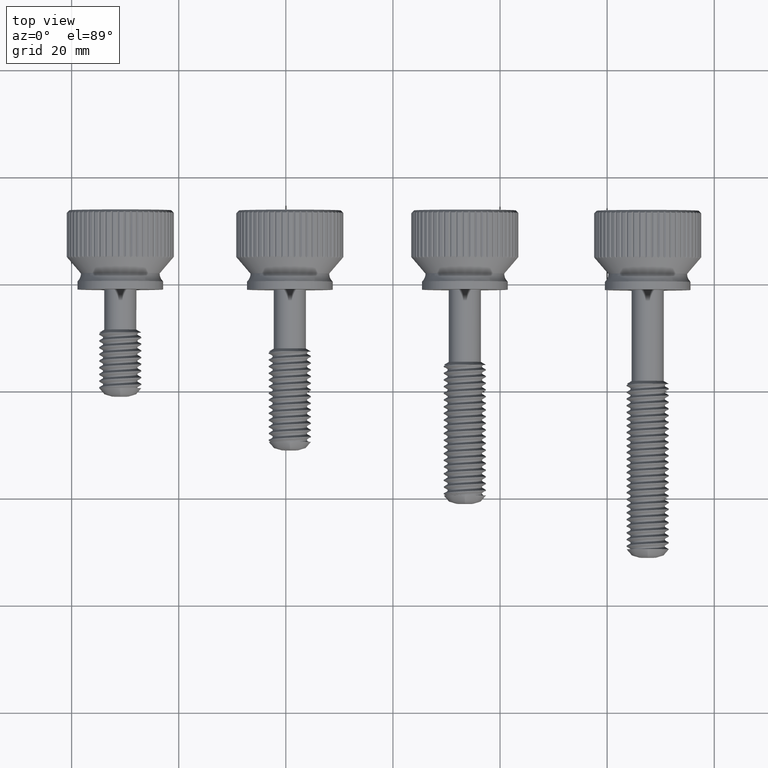
[diagram: clean part render]
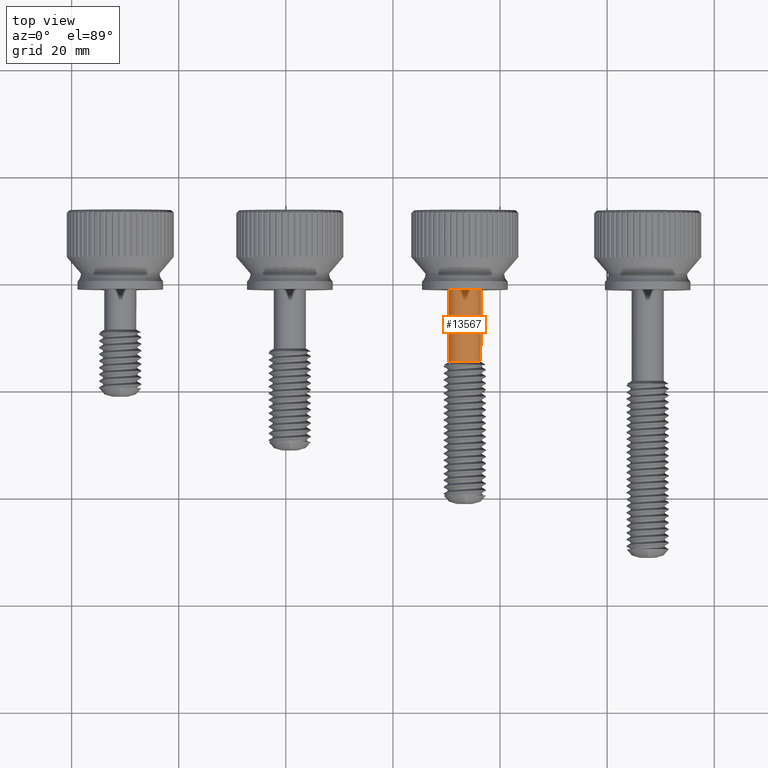
[diagram: same view with one face highlighted and labeled with its STEP entity id]
A machine part, top view. The second image highlights one B-rep face of the part: STEP entity #13567.
In plain terms, the highlighted cylindrical surface (bore or boss wall) has radius 3 mm, axis along (0, -1, -0).
Its self-contained STEP definition (entity closure, byte-faithful):
#71=FACE_BOUND('',#3837,.T.);
#3131=FACE_OUTER_BOUND('',#3836,.T.);
#3836=EDGE_LOOP('',(#11673));
#3837=EDGE_LOOP('',(#11674));
#4376=CIRCLE('',#14604,3.);
#4377=CIRCLE('',#14606,3.);
#5870=VERTEX_POINT('',#41425);
#5871=VERTEX_POINT('',#41428);
#7890=EDGE_CURVE('',#5870,#5870,#4376,.T.);
#7891=EDGE_CURVE('',#5871,#5871,#4377,.T.);
#11673=ORIENTED_EDGE('',*,*,#7890,.T.);
#11674=ORIENTED_EDGE('',*,*,#7891,.F.);
#13000=CYLINDRICAL_SURFACE('',#14605,3.);
#13567=ADVANCED_FACE('',(#3131,#71),#13000,.T.);
#14604=AXIS2_PLACEMENT_3D('',#41426,#17083,#17084);
#14605=AXIS2_PLACEMENT_3D('',#41427,#17085,#17086);
#14606=AXIS2_PLACEMENT_3D('',#41429,#17087,#17088);
#17083=DIRECTION('center_axis',(0.,-1.,0.));
#17084=DIRECTION('ref_axis',(1.,0.,0.));
#17085=DIRECTION('center_axis',(0.,-1.,0.));
#17086=DIRECTION('ref_axis',(1.,0.,0.));
#17087=DIRECTION('center_axis',(0.,-1.,0.));
#17088=DIRECTION('ref_axis',(1.,0.,0.));
#41425=CARTESIAN_POINT('',(-3.,-1.11022302462516E-15,-3.67394039744206E-16));
#41426=CARTESIAN_POINT('Origin',(0.,5.55111512312578E-16,0.));
#41427=CARTESIAN_POINT('Origin',(0.,-6.75,0.));
#41428=CARTESIAN_POINT('',(-3.,-13.5,-3.67394039744206E-16));
#41429=CARTESIAN_POINT('Origin',(0.,-13.5,0.));